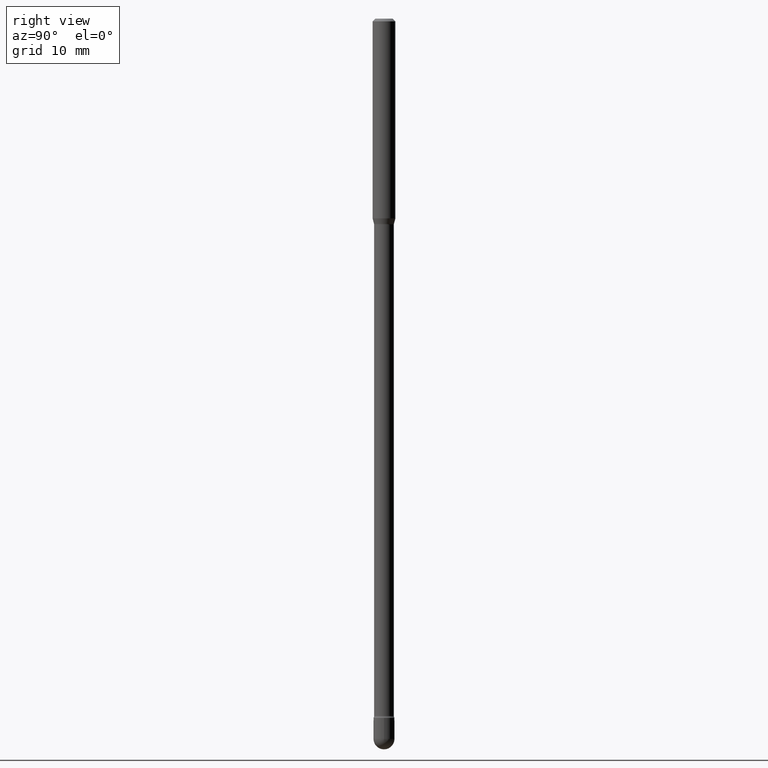
[diagram: clean part render]
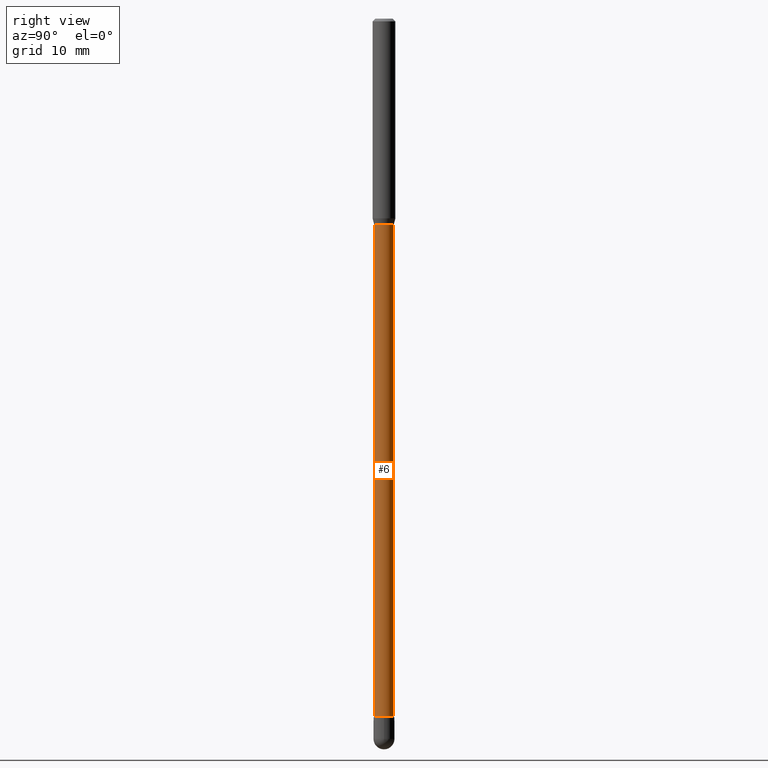
[diagram: same view with one face highlighted and labeled with its STEP entity id]
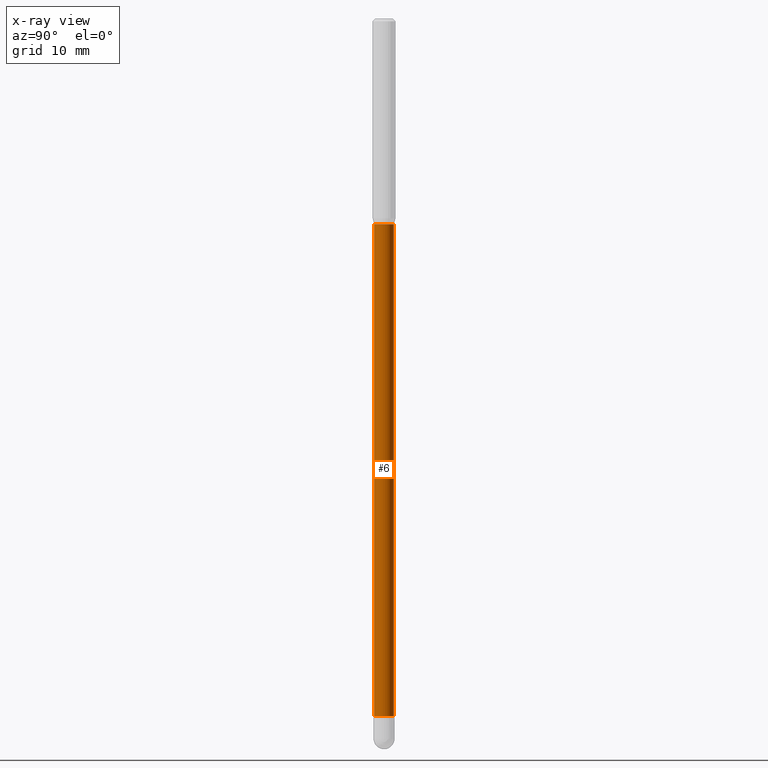
[diagram: x-ray of the same camera — body ghosted, the highlighted face saturated]
A machine part, right view. The second image highlights one B-rep face of the part: STEP entity #6.
The next image is the same camera in x-ray: the body ghosted, the highlighted face saturated — about 0% of this face is hidden behind the body in this view.
In plain terms, the highlighted cylindrical surface (edge-blend (fillet) strip) has radius 1.3729 mm, axis along (-0, 0, 1).
Its self-contained STEP definition (entity closure, byte-faithful):
#6 = ADVANCED_FACE ( 'NONE', ( #402 ), #531, .T. ) ;
#12 = CARTESIAN_POINT ( 'NONE',  ( -1.169113584055446105E-44, 1.669184350826100908E-30, 4.780733988912460139E-16 ) ) ;
#13 = VERTEX_POINT ( 'NONE', #51 ) ;
#17 = DIRECTION ( 'NONE',  ( -2.445471990974716731E-29, 3.491476778043199636E-15, 1.000000000000000000 ) ) ;
#28 = AXIS2_PLACEMENT_3D ( 'NONE', #99, #449, #281 ) ;
#44 = DIRECTION ( 'NONE',  ( -6.982962677686265922E-15, -1.000000000000000000, 0.000000000000000000 ) ) ;
#46 = EDGE_CURVE ( 'NONE', #172, #216, #562, .T. ) ;
#51 = CARTESIAN_POINT ( 'NONE',  ( 3.963052108702903812E-16, 0.05404999999998692101, -3.817429341715430358 ) ) ;
#54 = DIRECTION ( 'NONE',  ( -2.445471990974716450E-29, 3.491476778043199636E-15, 1.000000000000000000 ) ) ;
#77 = CARTESIAN_POINT ( 'NONE',  ( -3.774291327289152172E-16, -0.05405000000000394211, -1.126974787463810745 ) ) ;
#78 = ORIENTED_EDGE ( 'NONE', *, *, #109, .T. ) ;
#90 = EDGE_LOOP ( 'NONE', ( #78, #343, #427, #254 ) ) ;
#99 = CARTESIAN_POINT ( 'NONE',  ( 2.755985277277434029E-29, -3.934806299870066336E-15, -1.126974787463810967 ) ) ;
#109 = EDGE_CURVE ( 'NONE', #128, #13, #205, .T. ) ;
#122 = CARTESIAN_POINT ( 'NONE',  ( 3.840483486784283759E-16, 0.05404999999999607341, -1.126974787463810967 ) ) ;
#128 = VERTEX_POINT ( 'NONE', #347 ) ;
#133 = LINE ( 'NONE', #312, #262 ) ;
#172 = VERTEX_POINT ( 'NONE', #77 ) ;
#180 = AXIS2_PLACEMENT_3D ( 'NONE', #489, #439, #44 ) ;
#205 = CIRCLE ( 'NONE', #180, 0.05405000000000025062 ) ;
#216 = VERTEX_POINT ( 'NONE', #122 ) ;
#243 = VECTOR ( 'NONE', #54, 39.37007874015748143 ) ;
#254 = ORIENTED_EDGE ( 'NONE', *, *, #273, .F. ) ;
#262 = VECTOR ( 'NONE', #487, 39.37007874015748143 ) ;
#271 = DIRECTION ( 'NONE',  ( -6.982962677686265922E-15, -1.000000000000000000, 3.491476778043199242E-15 ) ) ;
#273 = EDGE_CURVE ( 'NONE', #128, #172, #133, .T. ) ;
#281 = DIRECTION ( 'NONE',  ( -6.982962677686265922E-15, -1.000000000000000000, 2.527148930309216366E-15 ) ) ;
#308 = AXIS2_PLACEMENT_3D ( 'NONE', #12, #17, #271 ) ;
#312 = CARTESIAN_POINT ( 'NONE',  ( -3.774291327289436162E-16, -0.05405000000000013266, 6.667877187444814746E-16 ) ) ;
#320 = LINE ( 'NONE', #445, #243 ) ;
#343 = ORIENTED_EDGE ( 'NONE', *, *, #379, .T. ) ;
#347 = CARTESIAN_POINT ( 'NONE',  ( -3.774291327288510236E-16, -0.05405000000001357330, -3.817429341715430358 ) ) ;
#379 = EDGE_CURVE ( 'NONE', #13, #216, #320, .T. ) ;
#402 = FACE_OUTER_BOUND ( 'NONE', #90, .T. ) ;
#427 = ORIENTED_EDGE ( 'NONE', *, *, #46, .F. ) ;
#439 = DIRECTION ( 'NONE',  ( -2.445471990974716731E-29, 3.491476778043199636E-15, 1.000000000000000000 ) ) ;
#445 = CARTESIAN_POINT ( 'NONE',  ( 3.840483486783349945E-16, 0.05405000000000013266, 2.893590790380107011E-16 ) ) ;
#449 = DIRECTION ( 'NONE',  ( -2.445471990974716731E-29, 3.491476778043199636E-15, 1.000000000000000000 ) ) ;
#487 = DIRECTION ( 'NONE',  ( -2.445471990974716450E-29, 3.491476778043199636E-15, 1.000000000000000000 ) ) ;
#489 = CARTESIAN_POINT ( 'NONE',  ( 9.335416532690136069E-29, -1.332846589842016420E-14, -3.817429341715430358 ) ) ;
#531 = CYLINDRICAL_SURFACE ( 'NONE', #308, 0.05405000000000013266 ) ;
#562 = CIRCLE ( 'NONE', #28, 0.05405000000000000776 ) ;